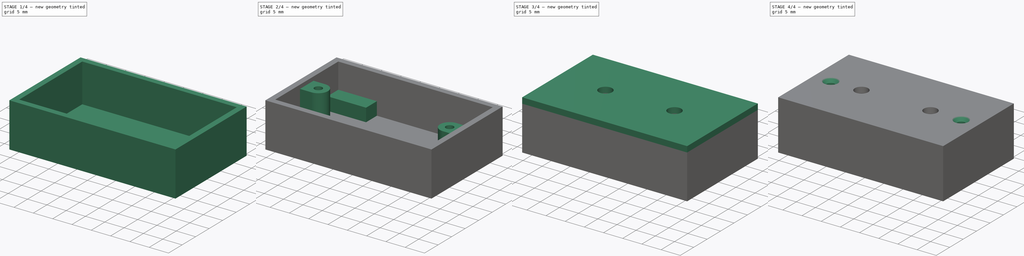
[diagram: build sequence overview — one tinted view per stage of 4, left to right]
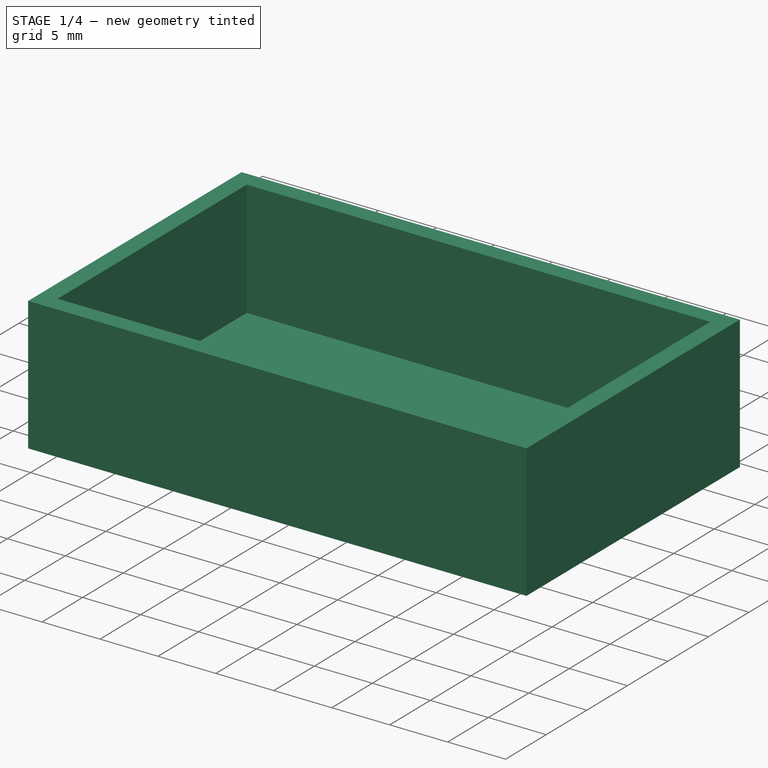
[diagram: stage 1 of 4 — iso view after this stage's code; geometry added in this stage tinted green]
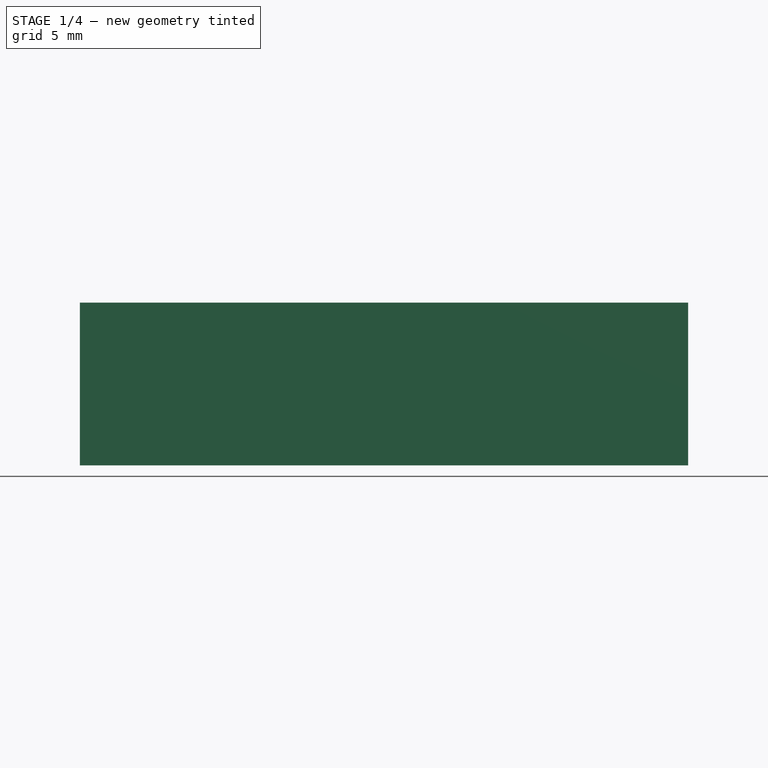
[diagram: stage 1 of 4 — front view after this stage's code; geometry added in this stage tinted green]
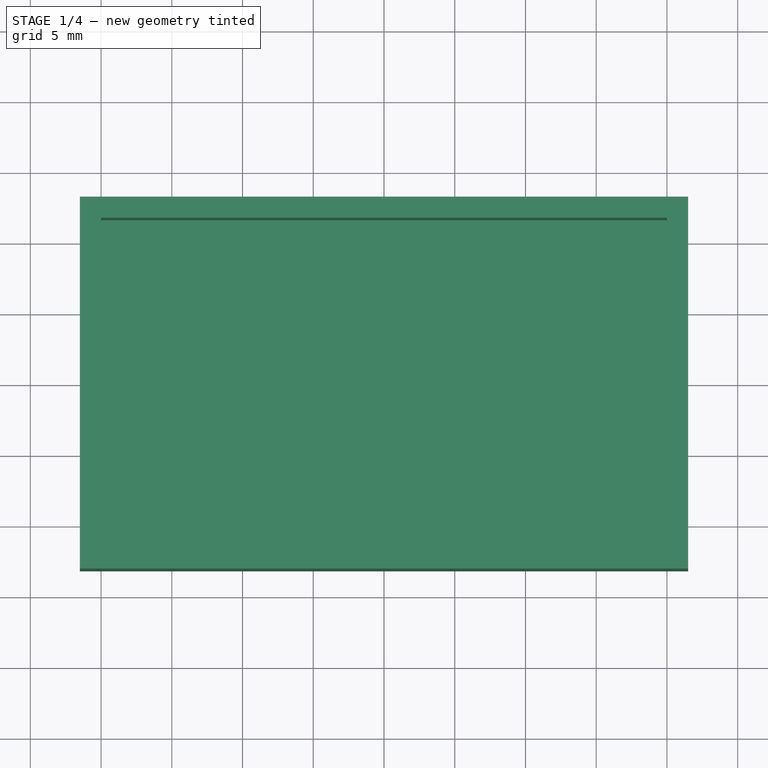
[diagram: stage 1 of 4 — top view after this stage's code; geometry added in this stage tinted green]
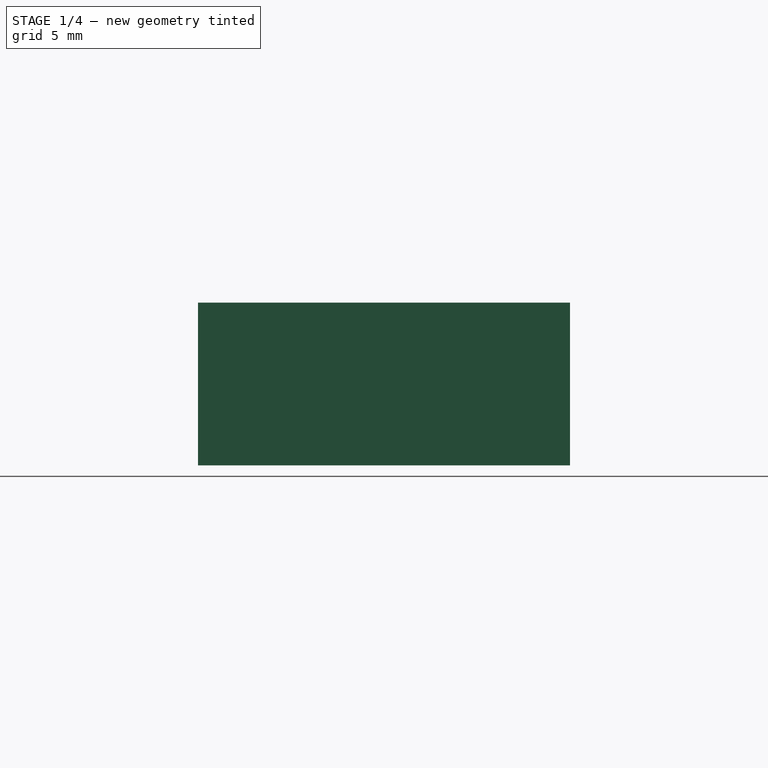
[diagram: stage 1 of 4 — right view after this stage's code; geometry added in this stage tinted green]
FCSTD DOCUMENT  (FreeCAD 0.21R33668 +26 (Git))
Label: qc_jig_button_box
License: All rights reserved
LicenseURL: https://en.wikipedia.org/wiki/All_rights_reserved
objects: Sketcher::SketchObject×9, PartDesign::Pad×6, PartDesign::Plane×2, PartDesign::Pocket×2, PartDesign::Body×2, PartDesign::Hole×1
note: 31 computed .brp shape members not serialized (recipe doc carries the construction recipe); baked Part::Feature solids carry a one-line shape summary decoded from their .brp

FEATURE [Sketcher::SketchObject] Sketch
  FullyConstrained = true
  MapMode = 5
  Support = -> [XY_Plane]
  sketch-geometry (10):
    g0: LineSegment StartX=-20 StartY=-11.65 StartZ=0 EndX=-20 EndY=11.65 EndZ=0
    g1: LineSegment StartX=-20 StartY=11.65 StartZ=0 EndX=20 EndY=11.65 EndZ=0
    g2: LineSegment StartX=20 StartY=11.65 StartZ=0 EndX=20 EndY=-11.65 EndZ=0
    g3: LineSegment StartX=20 StartY=-11.65 StartZ=0 EndX=-20 EndY=-11.65 EndZ=0
    g4: GeomPoint X=0 Y=0 Z=0
    g5: LineSegment StartX=-21.5 StartY=-13.15 StartZ=0 EndX=-21.5 EndY=13.15 EndZ=0
    g6: LineSegment StartX=-21.5 StartY=13.15 StartZ=0 EndX=21.5 EndY=13.15 EndZ=0
    g7: LineSegment StartX=21.5 StartY=13.15 StartZ=0 EndX=21.5 EndY=-13.15 EndZ=0
    g8: LineSegment StartX=21.5 StartY=-13.15 StartZ=0 EndX=-21.5 EndY=-13.15 EndZ=0
    g9: GeomPoint X=0 Y=0 Z=0
  constraints (26):
    c: Coincident(g0,g1)
    c: Coincident(g1,g2)
    c: Coincident(g2,g3)
    c: Coincident(g3,g0)
    c: Horizontal(g1)
    c: Horizontal(g3)
    c: Vertical(g0)
    c: Vertical(g2)
    c: Symmetric(g1,g0,g4)
    c: Coincident(g4,g-1)
    c: DistanceX(g1,g1) = 40
    c: DistanceY(g2,g2) = 23.3
    c: Coincident(g5,g6)
    c: Coincident(g6,g7)
    c: Coincident(g7,g8)
    c: Coincident(g8,g5)
    c: Horizontal(g6)
    c: Horizontal(g8)
    c: Vertical(g5)
    c: Vertical(g7)
    c: Symmetric(g6,g5,g9)
    c: Coincident(g9,g4)
    c: DistanceX(g1,g6) = 1.5
    c: DistanceY(g1,g6) = 1.5
    c: DistanceX(g8,g8) = 43
    c: DistanceY(g5,g5) = 26.3
FEATURE [PartDesign::Pad] Pad
  Direction = (0,0,1)
  Length = 10
  Length2 = 10
  Profile = -> Sketch
  ReferenceAxis = -> Sketch [N_Axis]
  Reversed = true
  Type = 0
FEATURE [PartDesign::Plane] DatumPlane
  AttachmentOffset = pos=(0,0,10) rot=(0,0,1;0rad)
  Length = 60
  MapMode = 5
  Placement = pos=(0,0,-10) rot=(0,1,0;3.14159rad)
  ResizeMode = 0
  Support = -> [XY_Plane]
  Width = 60
FEATURE [Sketcher::SketchObject] Sketch001
  FullyConstrained = true
  MapMode = 5
  Placement = pos=(0,0,-10) rot=(0,1,0;3.14159rad)
  Support = -> [DatumPlane]
  sketch-geometry (5):
    g0: LineSegment StartX=-21.5 StartY=-13.15 StartZ=0 EndX=-21.5 EndY=13.15 EndZ=0
    g1: LineSegment StartX=-21.5 StartY=13.15 StartZ=0 EndX=21.5 EndY=13.15 EndZ=0
    g2: LineSegment StartX=21.5 StartY=13.15 StartZ=0 EndX=21.5 EndY=-13.15 EndZ=0
    g3: LineSegment StartX=21.5 StartY=-13.15 StartZ=0 EndX=-21.5 EndY=-13.15 EndZ=0
    g4: GeomPoint X=0 Y=0 Z=0
  constraints (12):
    c: Coincident(g0,g1)
    c: Coincident(g1,g2)
    c: Coincident(g2,g3)
    c: Coincident(g3,g0)
    c: Horizontal(g1)
    c: Horizontal(g3)
    c: Vertical(g0)
    c: Vertical(g2)
    c: Symmetric(g1,g0,g4)
    c: Coincident(g4,g-1)
    c: DistanceX(g1,g1) = 43
    c: DistanceY(g0,g0) = 26.3
FEATURE [PartDesign::Pad] Pad001
  BaseFeature = -> Pad
  Direction = (0,0,-1)
  Length = 1.5
  Length2 = 10
  Profile = -> Sketch001
  ReferenceAxis = -> Sketch001 [N_Axis]
  Refine = true
  Type = 0
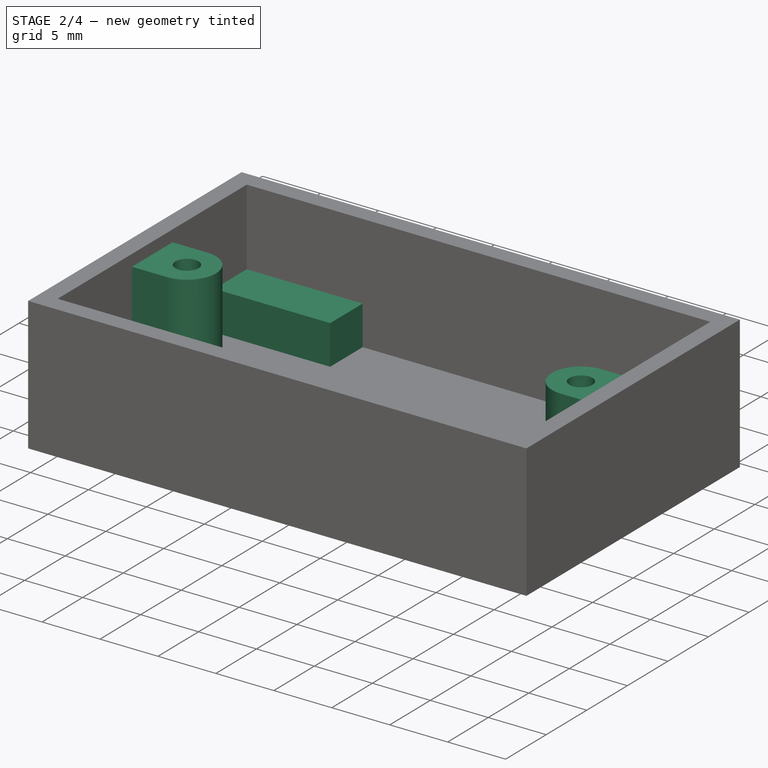
[diagram: stage 2 of 4 — iso view after this stage's code; geometry added in this stage tinted green]
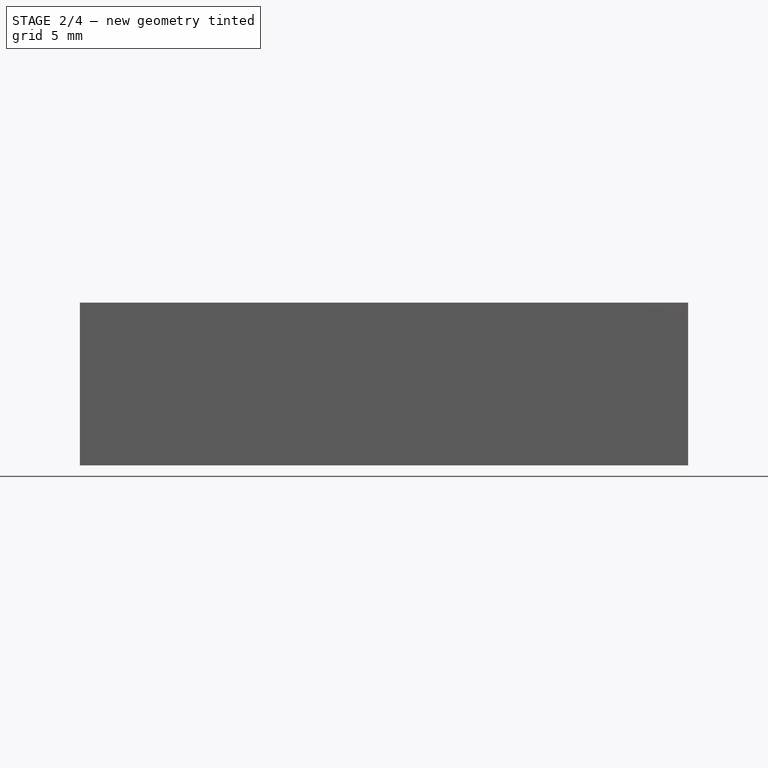
[diagram: stage 2 of 4 — front view after this stage's code; geometry added in this stage tinted green]
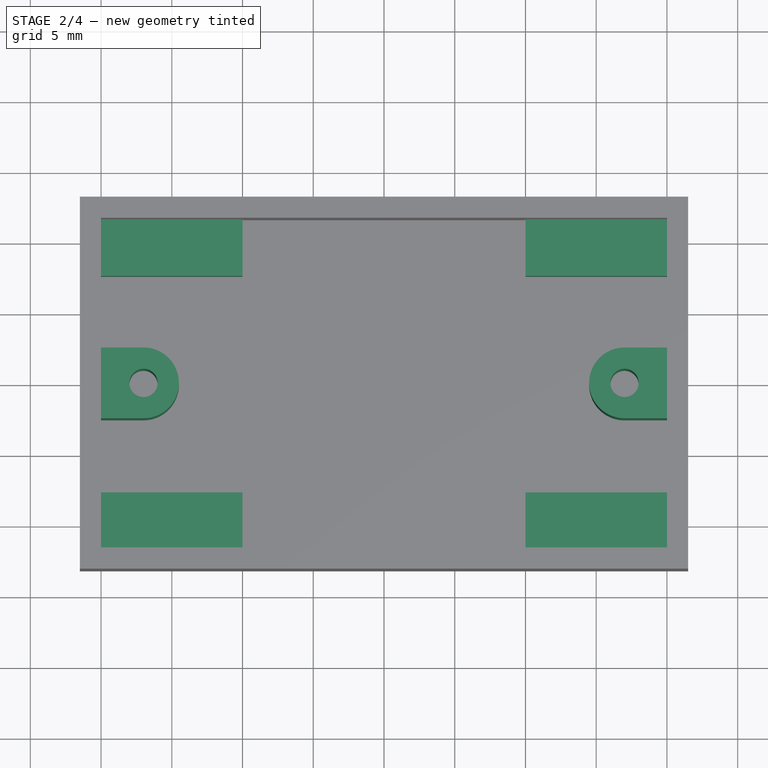
[diagram: stage 2 of 4 — top view after this stage's code; geometry added in this stage tinted green]
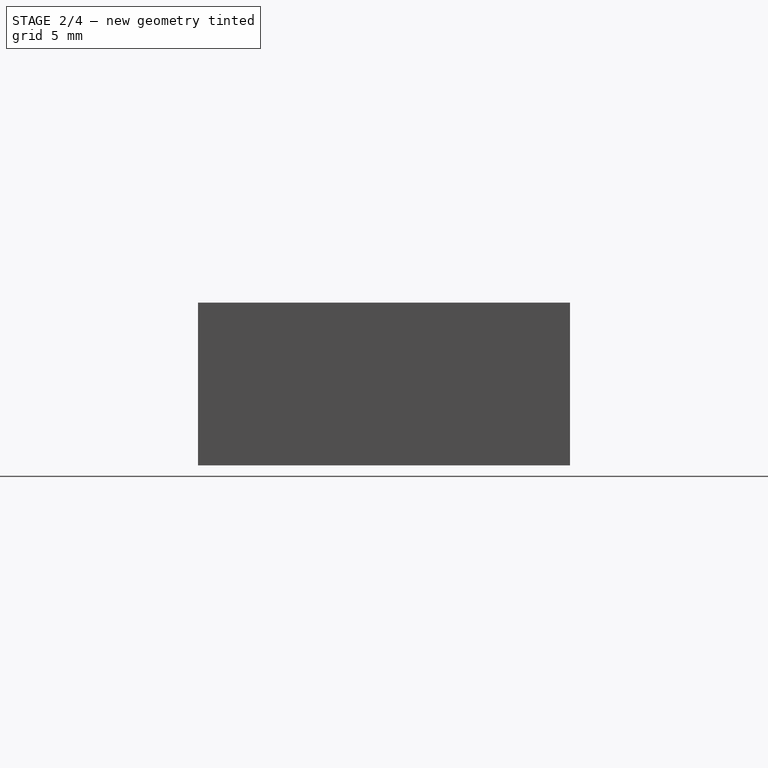
[diagram: stage 2 of 4 — right view after this stage's code; geometry added in this stage tinted green]
FEATURE [Sketcher::SketchObject] Sketch003
  FullyConstrained = true
  MapMode = 5
  Placement = pos=(0,0,-10) rot=(0,1,0;3.14159rad)
  Support = -> [DatumPlane]
  sketch-geometry (21):
    g0: LineSegment StartX=-13.5 StartY=-10.65 StartZ=0 EndX=-13.5 EndY=10.65 EndZ=0
    g1: LineSegment StartX=-13.5 StartY=10.65 StartZ=0 EndX=13.5 EndY=10.65 EndZ=0
    g2: LineSegment StartX=13.5 StartY=10.65 StartZ=0 EndX=13.5 EndY=-10.65 EndZ=0
    g3: LineSegment StartX=13.5 StartY=-10.65 StartZ=0 EndX=-13.5 EndY=-10.65 EndZ=0
    g4: GeomPoint X=0 Y=0 Z=0
    g5: LineSegment StartX=-20 StartY=11.65 StartZ=0 EndX=-10 EndY=11.65 EndZ=0
    g6: LineSegment StartX=-10 StartY=11.65 StartZ=0 EndX=-10 EndY=7.65 EndZ=0
    g7: LineSegment StartX=-10 StartY=7.65 StartZ=0 EndX=-20 EndY=7.65 EndZ=0
    g8: LineSegment StartX=-20 StartY=7.65 StartZ=0 EndX=-20 EndY=11.65 EndZ=0
    g9: LineSegment StartX=20 StartY=11.65 StartZ=0 EndX=10 EndY=11.65 EndZ=0
    g10: LineSegment StartX=10 StartY=11.65 StartZ=0 EndX=10 EndY=7.65 EndZ=0
    g11: LineSegment StartX=10 StartY=7.65 StartZ=0 EndX=20 EndY=7.65 EndZ=0
    g12: LineSegment StartX=20 StartY=7.65 StartZ=0 EndX=20 EndY=11.65 EndZ=0
    g13: LineSegment StartX=20 StartY=-11.65 StartZ=0 EndX=10 EndY=-11.65 EndZ=0
    g14: LineSegment StartX=10 StartY=-11.65 StartZ=0 EndX=10 EndY=-7.65 EndZ=0
    g15: LineSegment StartX=10 StartY=-7.65 StartZ=0 EndX=20 EndY=-7.65 EndZ=0
    g16: LineSegment StartX=20 StartY=-7.65 StartZ=0 EndX=20 EndY=-11.65 EndZ=0
    g17: LineSegment StartX=-20 StartY=-11.65 StartZ=0 EndX=-10 EndY=-11.65 EndZ=0
    g18: LineSegment StartX=-10 StartY=-11.65 StartZ=0 EndX=-10 EndY=-7.65 EndZ=0
    g19: LineSegment StartX=-10 StartY=-7.65 StartZ=0 EndX=-20 EndY=-7.65 EndZ=0
    g20: LineSegment StartX=-20 StartY=-7.65 StartZ=0 EndX=-20 EndY=-11.65 EndZ=0
  constraints (58):
    c: Coincident(g0,g1)
    c: Coincident(g1,g2)
    c: Coincident(g2,g3)
    c: Coincident(g3,g0)
    c: Horizontal(g1)
    c: Horizontal(g3)
    c: Vertical(g0)
    c: Vertical(g2)
    c: Symmetric(g1,g0,g4)
    c: Coincident(g4,g-1)
    c: DistanceX(g1,g1) = 27
    c: DistanceY(g2,g2) = 21.3
    c: Coincident(g5,g6)
    c: Coincident(g6,g7)
    c: Coincident(g7,g8)
    c: Coincident(g8,g5)
    c: Horizontal(g5)
    c: Horizontal(g7)
    c: Vertical(g6)
    c: Vertical(g8)
    c: Coincident(g9,g10)
    c: Coincident(g10,g11)
    c: Coincident(g11,g12)
    c: Coincident(g12,g9)
    c: Horizontal(g9)
    c: Horizontal(g11)
    c: Vertical(g10)
    c: Vertical(g12)
    c: Coincident(g13,g14)
    c: Coincident(g14,g15)
    c: Coincident(g15,g16)
    c: Coincident(g16,g13)
    c: Horizontal(g13)
    c: Horizontal(g15)
    c: Vertical(g14)
    c: Vertical(g16)
    c: Coincident(g17,g18)
    c: Coincident(g18,g19)
    c: Coincident(g19,g20)
    c: Coincident(g20,g17)
    c: Horizontal(g17)
    c: Horizontal(g19)
    c: Vertical(g18)
    c: Vertical(g20)
    c: Horizontal(g5,g9)
    c: Vertical(g11,g15)
    c: DistanceY(g17,g5) = 23.3
    c: DistanceX(g17,g13) = 40
    c: Symmetric(g13,g17,g-2)
    c: Symmetric(g5,g17,g-1)
    c: DistanceY(g6,g6) = 4
    c: DistanceX(g7,g7) = 10
    c: Equal(g7,g19)
    c: Equal(g19,g11)
    c: Equal(g11,g15)
    c: Equal(g6,g10)
    c: Equal(g10,g14)
    c: Equal(g14,g18)
FEATURE [PartDesign::Pad] Pad003
  BaseFeature = -> Pad001
  Direction = (0,0,-1)
  Length = 3.4
  Length2 = 10
  Profile = -> Sketch003
  ReferenceAxis = -> Sketch003 [N_Axis]
  Reversed = true
  Type = 0
FEATURE [Sketcher::SketchObject] Sketch004
  FullyConstrained = true
  MapMode = 5
  Placement = pos=(0,0,-10) rot=(0,1,0;3.14159rad)
  Support = -> [DatumPlane]
  sketch-geometry (15):
    g0: Circle CenterX=-17 CenterY=0 CenterZ=0 NormalX=0 NormalY=0 NormalZ=1 AngleXU=0 Radius=1
    g1: Circle CenterX=17 CenterY=0 CenterZ=0 NormalX=0 NormalY=0 NormalZ=1 AngleXU=0 Radius=1
    g2: ArcOfCircle CenterX=-17 CenterY=0 CenterZ=0 NormalX=0 NormalY=0 NormalZ=1 AngleXU=0 Radius=2.5 StartAngle=4.71239 EndAngle=7.85398
    g3: LineSegment StartX=-17 StartY=2.5 StartZ=0 EndX=-20 EndY=2.5 EndZ=0
    g4: LineSegment StartX=-20 StartY=2.5 StartZ=0 EndX=-20 EndY=-2.5 EndZ=0
    g5: LineSegment StartX=-20 StartY=-2.5 StartZ=0 EndX=-17 EndY=-2.5 EndZ=0
    g6: ArcOfCircle CenterX=17 CenterY=0 CenterZ=0 NormalX=0 NormalY=0 NormalZ=1 AngleXU=0 Radius=2.5 StartAngle=1.5708 EndAngle=4.71239
    g7: LineSegment StartX=17 StartY=2.5 StartZ=0 EndX=20 EndY=2.5 EndZ=0
    g8: LineSegment StartX=20 StartY=2.5 StartZ=0 EndX=20 EndY=-2.5 EndZ=0
    g9: LineSegment StartX=20 StartY=-2.5 StartZ=0 EndX=17 EndY=-2.5 EndZ=0
    g10: LineSegment StartX=-13.5 StartY=-10.65 StartZ=0 EndX=-13.5 EndY=10.65 EndZ=0
    g11: LineSegment StartX=-13.5 StartY=10.65 StartZ=0 EndX=13.5 EndY=10.65 EndZ=0
    g12: LineSegment StartX=13.5 StartY=10.65 StartZ=0 EndX=13.5 EndY=-10.65 EndZ=0
    g13: LineSegment StartX=13.5 StartY=-10.65 StartZ=0 EndX=-13.5 EndY=-10.65 EndZ=0
    g14: GeomPoint X=0 Y=0 Z=0
  constraints (37):
    c: PointOnObject(g0,g-1)
    c: Equal(g0,g1)
    c: Symmetric(g1,g0,g-1)
    c: Diameter(g1) = 2
    c: Coincident(g2,g0)
    c: Horizontal(g3)
    c: Coincident(g4,g3)
    c: Vertical(g4)
    c: Coincident(g5,g4)
    c: Horizontal(g5)
    c: Coincident(g6,g1)
    c: Coincident(g8,g7)
    c: Vertical(g8)
    c: Coincident(g9,g8)
    c: Horizontal(g7)
    c: Horizontal(g9)
    c: Tangent(g2,g3) = -1.5708
    c: Tangent(g2,g5) = -1.5708
    c: Tangent(g6,g9) = 1.5708
    c: Tangent(g6,g7) = 1.5708
    c: Equal(g2,g6)
    c: Diameter(g2) = 5
    c: DistanceX(g3,g-1) = 20
    c: Equal(g3,g7)
    c: Coincident(g10,g11)
    c: Coincident(g11,g12)
    c: Coincident(g12,g13)
    c: Coincident(g13,g10)
    c: Horizontal(g11)
    c: Horizontal(g13)
    c: Vertical(g10)
    c: Vertical(g12)
    c: Symmetric(g11,g10,g14)
    c: Coincident(g14,g-1)
    c: DistanceX(g11,g11) = 27
    c: DistanceY(g12,g12) = 21.3
    c: DistanceX(g0,g14) = 17
FEATURE [PartDesign::Pad] Pad004
  BaseFeature = -> Pad003
  Direction = (0,0,-1)
  Length = 9
  Length2 = 10
  Profile = -> Sketch004
  ReferenceAxis = -> Sketch004 [N_Axis]
  Reversed = true
  Type = 0
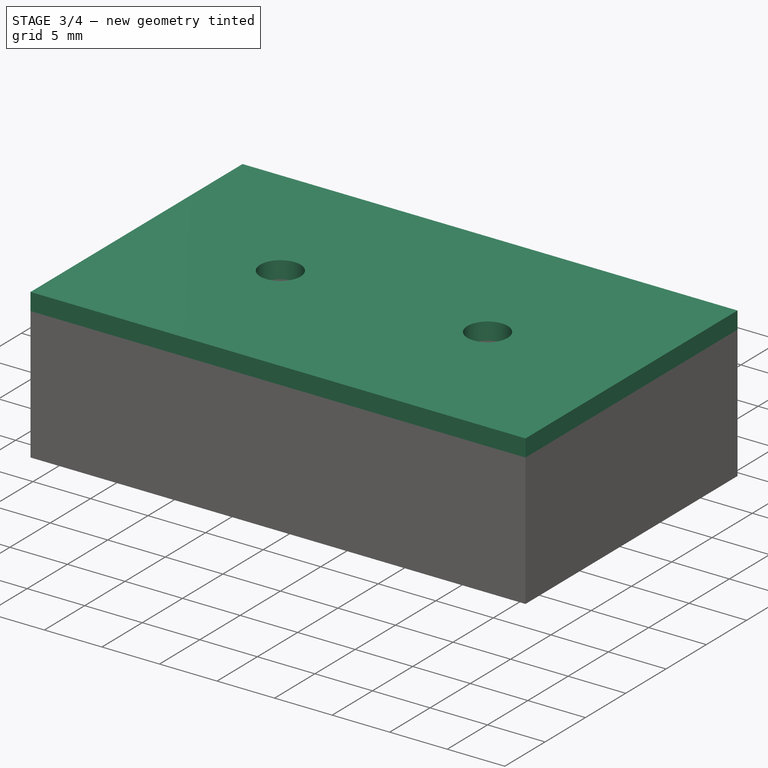
[diagram: stage 3 of 4 — iso view after this stage's code; geometry added in this stage tinted green]
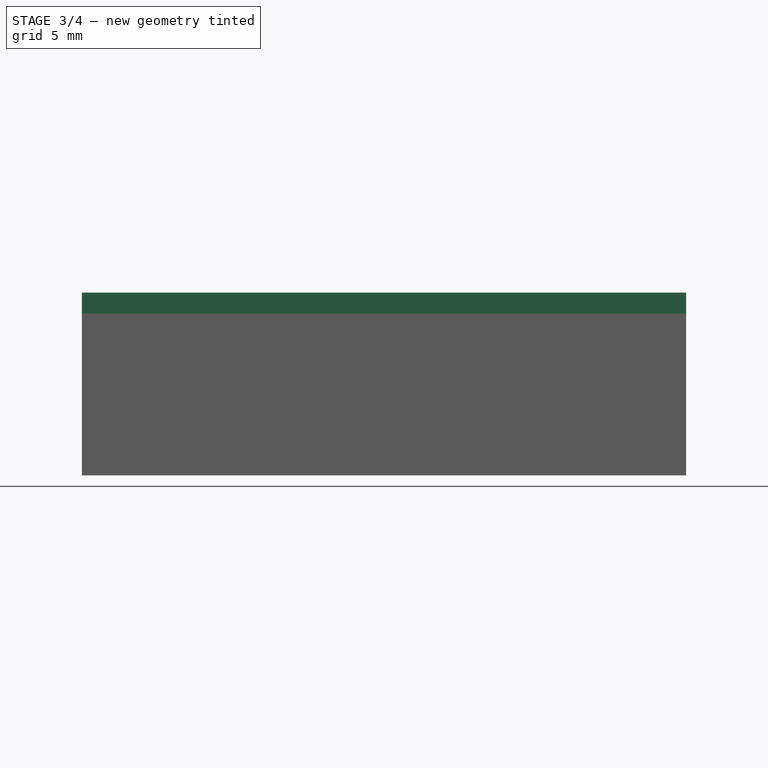
[diagram: stage 3 of 4 — front view after this stage's code; geometry added in this stage tinted green]
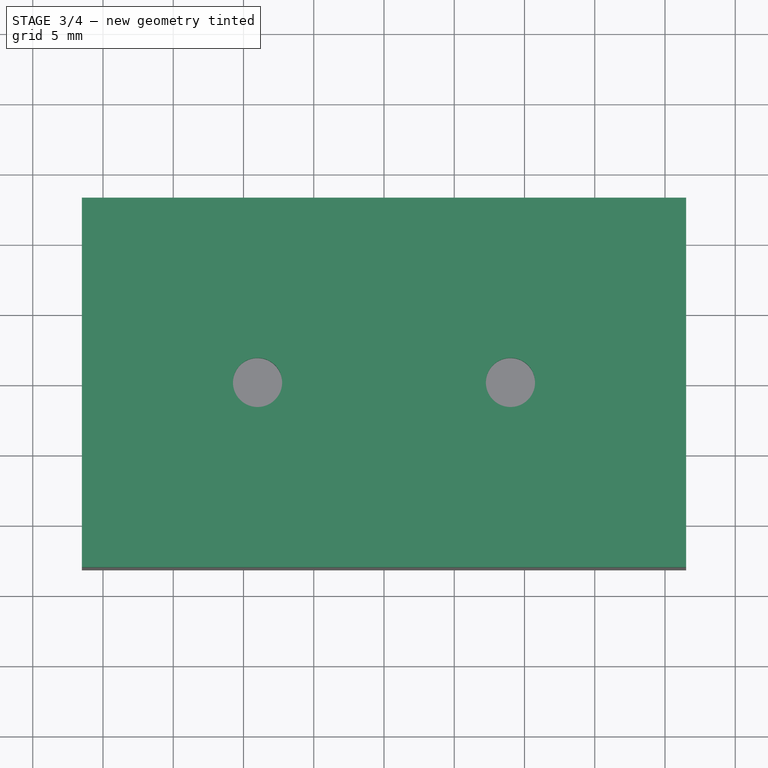
[diagram: stage 3 of 4 — top view after this stage's code; geometry added in this stage tinted green]
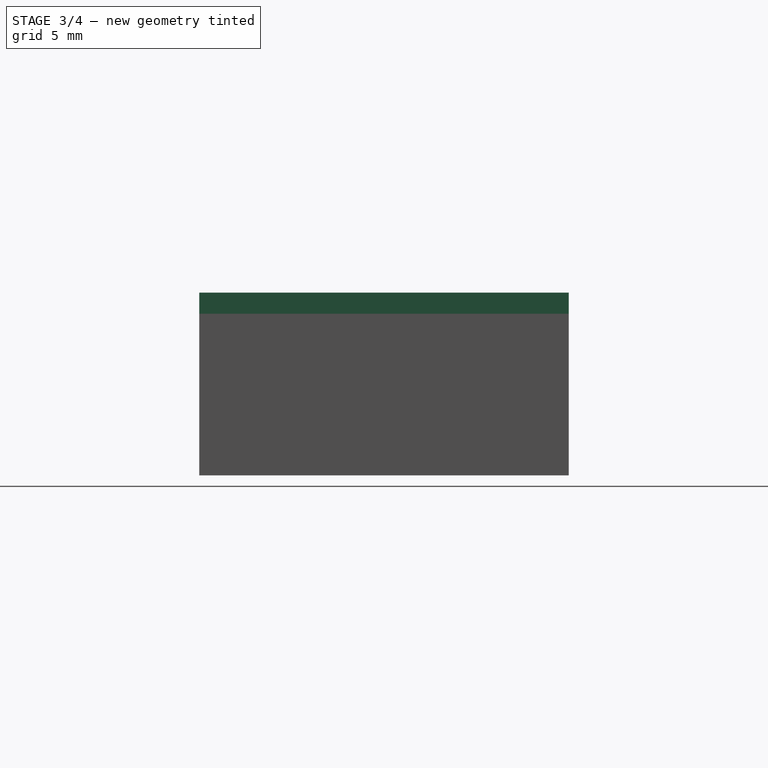
[diagram: stage 3 of 4 — right view after this stage's code; geometry added in this stage tinted green]
FEATURE [Sketcher::SketchObject] Sketch002
  FullyConstrained = true
  MapMode = 5
  Support = -> [XY_Plane001]
  sketch-geometry (5):
    g0: LineSegment StartX=-21.5 StartY=-13.15 StartZ=0 EndX=-21.5 EndY=13.15 EndZ=0
    g1: LineSegment StartX=-21.5 StartY=13.15 StartZ=0 EndX=21.5 EndY=13.15 EndZ=0
    g2: LineSegment StartX=21.5 StartY=13.15 StartZ=0 EndX=21.5 EndY=-13.15 EndZ=0
    g3: LineSegment StartX=21.5 StartY=-13.15 StartZ=0 EndX=-21.5 EndY=-13.15 EndZ=0
    g4: GeomPoint X=0 Y=0 Z=0
  constraints (12):
    c: Coincident(g0,g1)
    c: Coincident(g1,g2)
    c: Coincident(g2,g3)
    c: Coincident(g3,g0)
    c: Horizontal(g1)
    c: Horizontal(g3)
    c: Vertical(g0)
    c: Vertical(g2)
    c: Symmetric(g1,g0,g4)
    c: Coincident(g4,g-1)
    c: DistanceX(g1,g1) = 43
    c: DistanceY(g0,g0) = 26.3
FEATURE [PartDesign::Pad] Pad002
  Direction = (0,0,1)
  Length = 1.5
  Length2 = 10
  Profile = -> Sketch002
  ReferenceAxis = -> Sketch002 [N_Axis]
  Type = 0
FEATURE [Sketcher::SketchObject] Sketch005
  FullyConstrained = true
  MapMode = 5
  Support = -> [XY_Plane001]
  sketch-geometry (2):
    g0: Circle CenterX=-9 CenterY=0 CenterZ=0 NormalX=0 NormalY=0 NormalZ=1 AngleXU=0 Radius=1.75
    g1: Circle CenterX=9 CenterY=0 CenterZ=0 NormalX=0 NormalY=0 NormalZ=1 AngleXU=0 Radius=1.75
  constraints (5):
    c: PointOnObject(g0,g-1)
    c: DistanceX(g0,g1) = 18
    c: Symmetric(g0,g1,g-1)
    c: Equal(g1,g0)
    c: Diameter(g1) = 3.5
FEATURE [PartDesign::Pocket] Pocket
  BaseFeature = -> Pad002
  Direction = (0,0,-1)
  Length = 5
  Length2 = 5
  Profile = -> Sketch005
  ReferenceAxis = -> Sketch005 [N_Axis]
  Reversed = true
  Type = 0
FEATURE [PartDesign::Body] Body001
  Group = -> [Sketch002,Pad002,Sketch005,Pocket,Sketch006,Pad005,DatumPlane001,Sketch007,Hole]
  Origin = -> Origin001
  Tip = -> Hole
FEATURE [Sketcher::SketchObject] Sketch008
  FullyConstrained = true
  MapMode = 5
  Placement = pos=(0,0,0) rot=(1,0,0;1.5708rad)
  Support = -> [XZ_Plane]
  sketch-geometry (6):
    g0: LineSegment StartX=-5 StartY=0 StartZ=0 EndX=5 EndY=0 EndZ=0
    g1: LineSegment StartX=5 StartY=0 StartZ=0 EndX=5 EndY=-2.5 EndZ=0
    g2: LineSegment StartX=3.5 StartY=-4 StartZ=0 EndX=-3.5 EndY=-4 EndZ=0
    g3: LineSegment StartX=-5 StartY=-2.5 StartZ=0 EndX=-5 EndY=0 EndZ=0
    g4: ArcOfCircle CenterX=-3.5 CenterY=-2.5 CenterZ=0 NormalX=0 NormalY=0 NormalZ=1 AngleXU=0 Radius=1.5 StartAngle=3.14159 EndAngle=4.71239
    g5: ArcOfCircle CenterX=3.5 CenterY=-2.5 CenterZ=0 NormalX=0 NormalY=0 NormalZ=1 AngleXU=0 Radius=1.5 StartAngle=4.71239 EndAngle=6.28319
  constraints (15):
    c: Coincident(g0,g1)
    c: Coincident(g3,g0)
    c: Horizontal(g0)
    c: Horizontal(g2)
    c: Vertical(g1)
    c: Vertical(g3)
    c: Symmetric(g0,g0,g-1)
    c: DistanceX(g0,g0) = 10
    c: Tangent(g3,g4) = 1.5708
    c: Tangent(g2,g4) = 1.5708
    c: Tangent(g1,g5) = 1.5708
    c: Tangent(g2,g5) = 1.5708
    c: DistanceY(g2,g0) = 4
    c: Equal(g5,g4)
    c: Diameter(g5) = 3
FEATURE [PartDesign::Pocket] Pocket001
  BaseFeature = -> Pad004
  Direction = (0,1,-2e-16)
  Length = 5
  Length2 = 5
  Profile = -> Sketch008
  ReferenceAxis = -> Sketch008 [N_Axis]
  Type = 1
FEATURE [PartDesign::Body] Body
  Group = -> [Sketch,Pad,DatumPlane,Sketch001,Pad001,Sketch003,Pad003,Sketch004,Pad004,Sketch008,Pocket001]
  Origin = -> Origin
  Tip = -> Pocket001
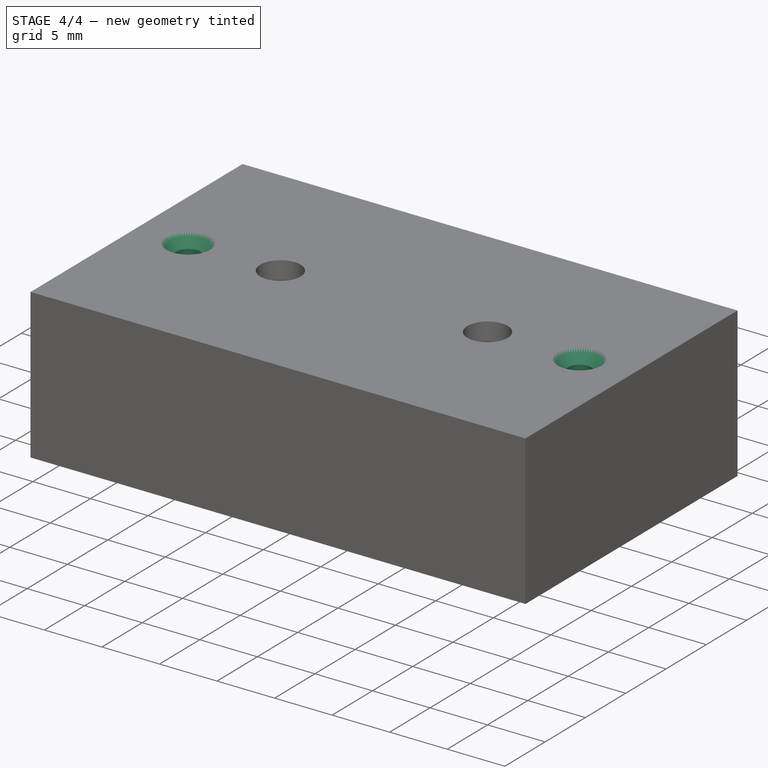
[diagram: stage 4 of 4 — iso view after this stage's code; geometry added in this stage tinted green]
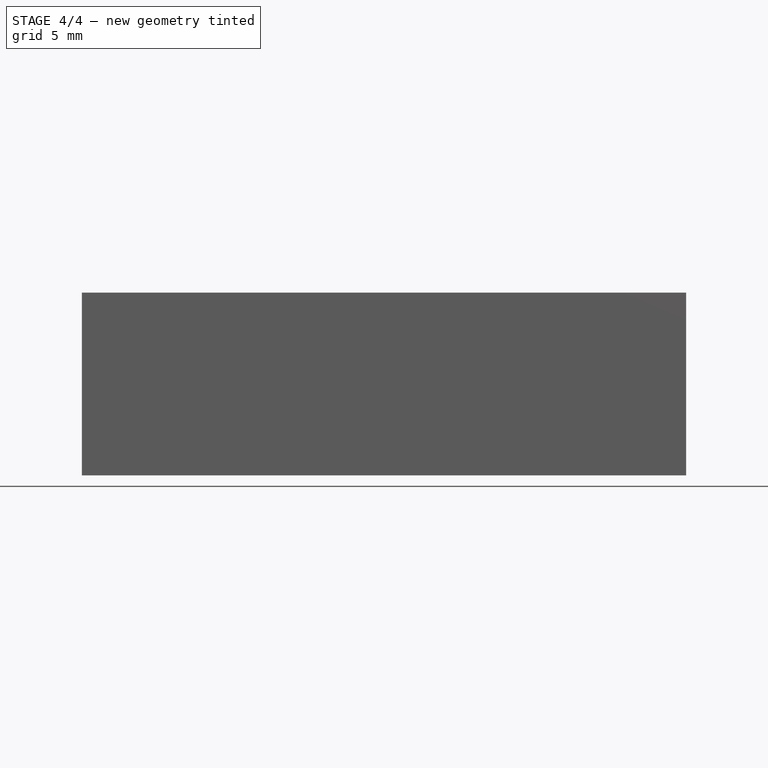
[diagram: stage 4 of 4 — front view after this stage's code; geometry added in this stage tinted green]
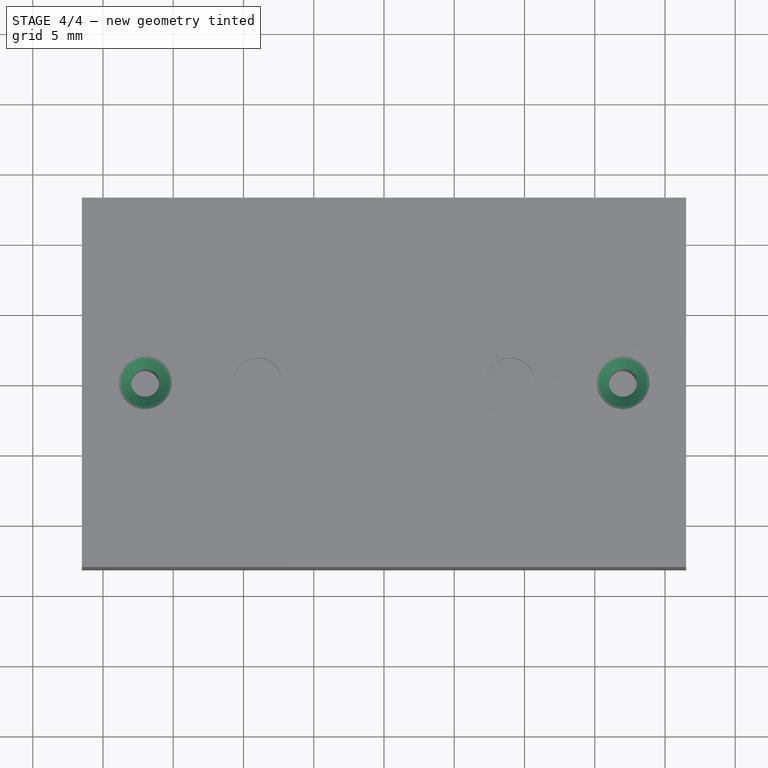
[diagram: stage 4 of 4 — top view after this stage's code; geometry added in this stage tinted green]
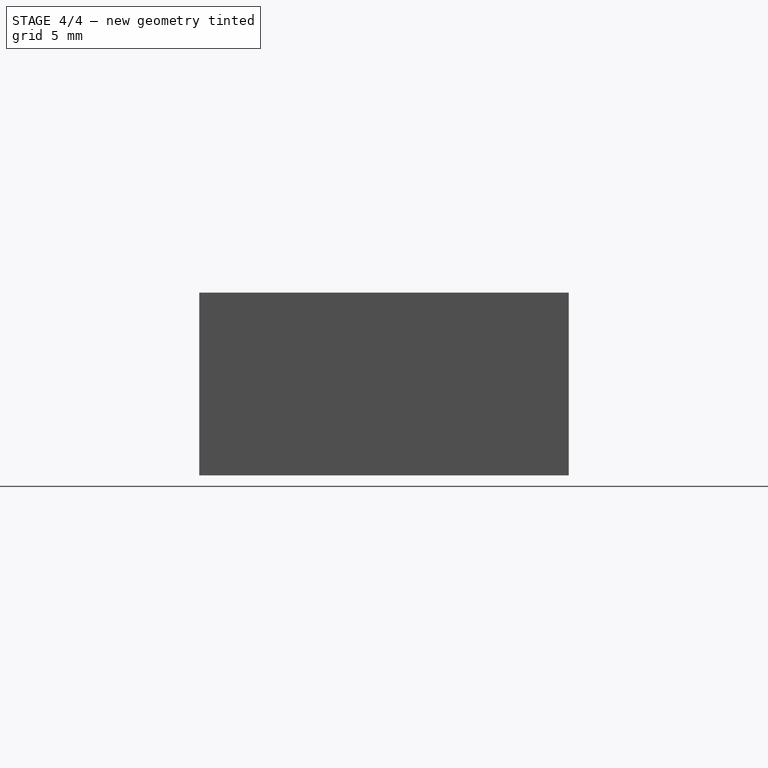
[diagram: stage 4 of 4 — right view after this stage's code; geometry added in this stage tinted green]
FEATURE [Sketcher::SketchObject] Sketch006
  FullyConstrained = true
  MapMode = 5
  Support = -> [XY_Plane001]
  sketch-geometry (15):
    g0: LineSegment StartX=-19 StartY=-10.65 StartZ=0 EndX=-19 EndY=10.65 EndZ=0
    g1: LineSegment StartX=-19 StartY=10.65 StartZ=0 EndX=19 EndY=10.65 EndZ=0
    g2: LineSegment StartX=19 StartY=10.65 StartZ=0 EndX=19 EndY=-10.65 EndZ=0
    g3: LineSegment StartX=19 StartY=-10.65 StartZ=0 EndX=-19 EndY=-10.65 EndZ=0
    g4: GeomPoint X=0 Y=0 Z=0
    g5: LineSegment StartX=-18 StartY=-9.65 StartZ=0 EndX=-18 EndY=9.65 EndZ=0
    g6: LineSegment StartX=-18 StartY=9.65 StartZ=0 EndX=18 EndY=9.65 EndZ=0
    g7: LineSegment StartX=18 StartY=9.65 StartZ=0 EndX=18 EndY=-9.65 EndZ=0
    g8: LineSegment StartX=18 StartY=-9.65 StartZ=0 EndX=-18 EndY=-9.65 EndZ=0
    g9: GeomPoint X=0 Y=0 Z=0
    g10: LineSegment StartX=-13.5 StartY=-10.65 StartZ=0 EndX=-13.5 EndY=10.65 EndZ=0
    g11: LineSegment StartX=-13.5 StartY=10.65 StartZ=0 EndX=13.5 EndY=10.65 EndZ=0
    g12: LineSegment StartX=13.5 StartY=10.65 StartZ=0 EndX=13.5 EndY=-10.65 EndZ=0
    g13: LineSegment StartX=13.5 StartY=-10.65 StartZ=0 EndX=-13.5 EndY=-10.65 EndZ=0
    g14: GeomPoint X=0 Y=0 Z=0
  constraints (36):
    c: Coincident(g0,g1)
    c: Coincident(g1,g2)
    c: Coincident(g2,g3)
    c: Coincident(g3,g0)
    c: Horizontal(g1)
    c: Horizontal(g3)
    c: Vertical(g0)
    c: Vertical(g2)
    c: Symmetric(g1,g0,g4)
    c: Coincident(g4,g-1)
    c: DistanceX(g1,g1) = 38
    c: DistanceY(g2,g2) = 21.3
    c: Coincident(g5,g6)
    c: Coincident(g6,g7)
    c: Coincident(g7,g8)
    c: Coincident(g8,g5)
    c: Horizontal(g6)
    c: Horizontal(g8)
    c: Vertical(g5)
    c: Vertical(g7)
    c: Symmetric(g6,g5,g9)
    c: Coincident(g9,g4)
    c: DistanceX(g0,g5) = 1
    c: DistanceY(g5,g0) = 1
    c: Coincident(g10,g11)
    c: Coincident(g11,g12)
    c: Coincident(g12,g13)
    c: Coincident(g13,g10)
    c: Horizontal(g11)
    c: Horizontal(g13)
    c: Vertical(g10)
    c: Vertical(g12)
    c: Symmetric(g11,g10,g14)
    c: Coincident(g14,g4)
    c: DistanceX(g11,g11) = 27
    c: DistanceY(g12,g12) = 21.3
FEATURE [PartDesign::Pad] Pad005
  BaseFeature = -> Pocket
  Direction = (0,0,1)
  Length = 1
  Length2 = 10
  Profile = -> Sketch006
  ReferenceAxis = -> Sketch006 [N_Axis]
  Reversed = true
  Type = 0
FEATURE [PartDesign::Plane] DatumPlane001
  AttachmentOffset = pos=(0,0,1.5) rot=(0,0,1;0rad)
  Length = 60
  MapMode = 5
  Placement = pos=(0,0,1.5) rot=(0,0,1;0rad)
  ResizeMode = 0
  Support = -> [XY_Plane001]
  Width = 60
FEATURE [Sketcher::SketchObject] Sketch007
  FullyConstrained = true
  MapMode = 5
  Placement = pos=(0,0,1.5) rot=(0,0,1;0rad)
  Support = -> [DatumPlane001]
  sketch-geometry (2):
    g0: Circle CenterX=-17 CenterY=0 CenterZ=0 NormalX=0 NormalY=0 NormalZ=1 AngleXU=0 Radius=1
    g1: Circle CenterX=17 CenterY=0 CenterZ=0 NormalX=0 NormalY=0 NormalZ=1 AngleXU=0 Radius=1
  constraints (5):
    c: PointOnObject(g0,g-1)
    c: Equal(g0,g1)
    c: Diameter(g0) = 2
    c: Symmetric(g0,g1,g-1)
    c: DistanceX(g0,g-1) = 17
FEATURE [PartDesign::Hole] Hole
  BaseFeature = -> Pad005
  CustomThreadClearance = 0
  Depth = 25
  DepthType = 0
  Diameter = 2
  DrillForDepth = false
  DrillPoint = 1
  DrillPointAngle = 118
  HoleCutCountersinkAngle = 90
  HoleCutCustomValues = false
  HoleCutDepth = 0
  HoleCutDiameter = 3.8
  HoleCutType = 2
  ModelThread = false
  Profile = -> Sketch007
  Tapered = false
  TaperedAngle = 90
  ThreadClass = 0
  ThreadDepth = 25
  ThreadDepthType = 0
  ThreadDirection = 0
  ThreadFit = 0
  ThreadSize = 0
  ThreadType = 0
  Threaded = false
  UseCustomThreadClearance = false
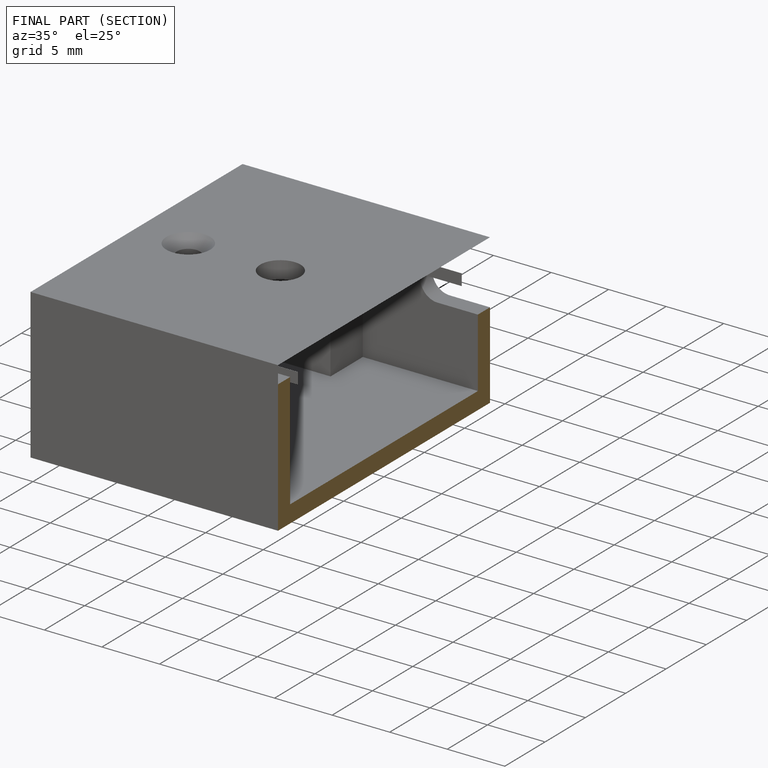
[diagram: finished part — half-section view (interior)]
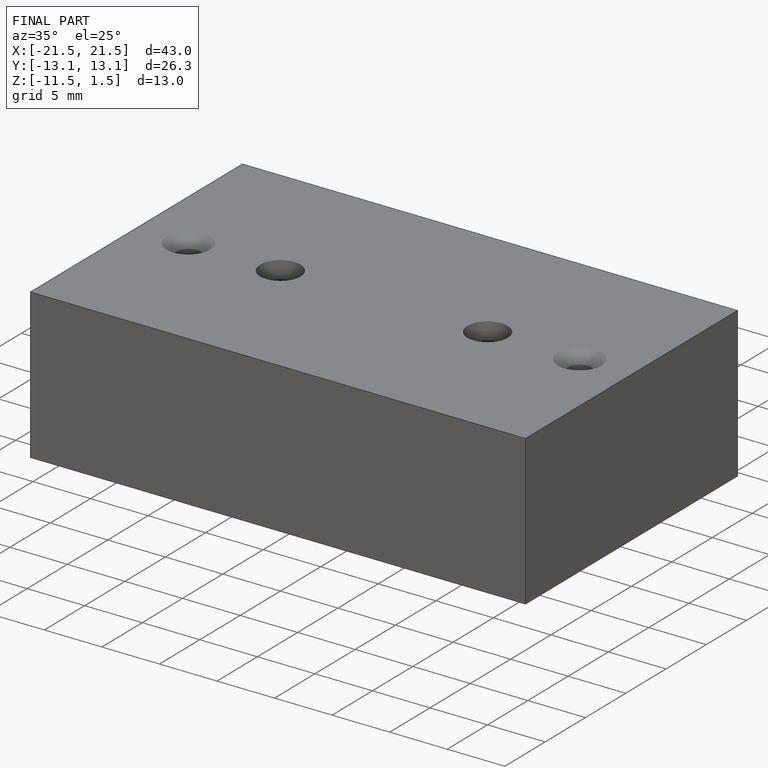
[diagram: finished part — iso view with bounding-box wireframe]
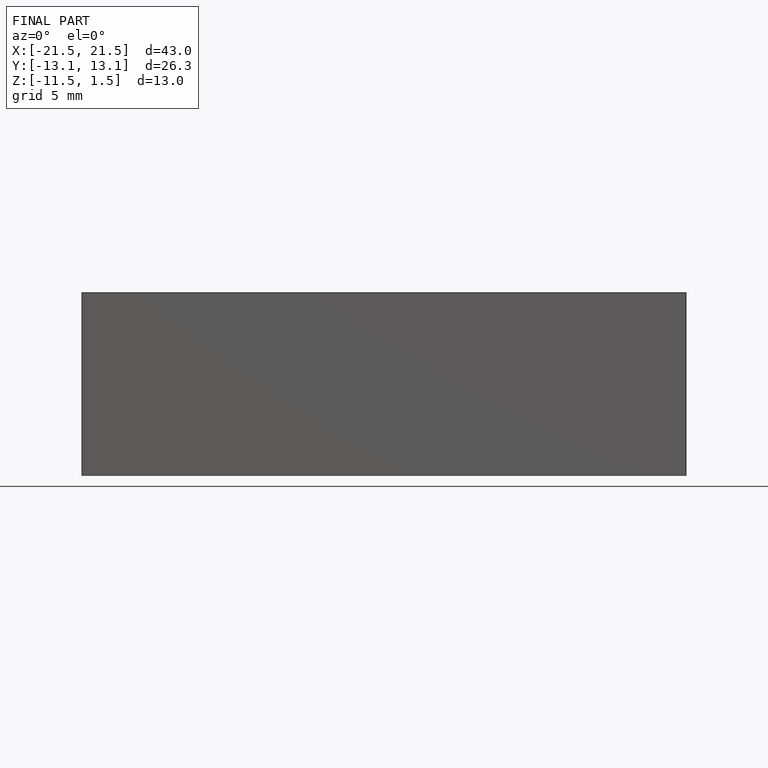
[diagram: finished part — front view with bounding-box wireframe]
